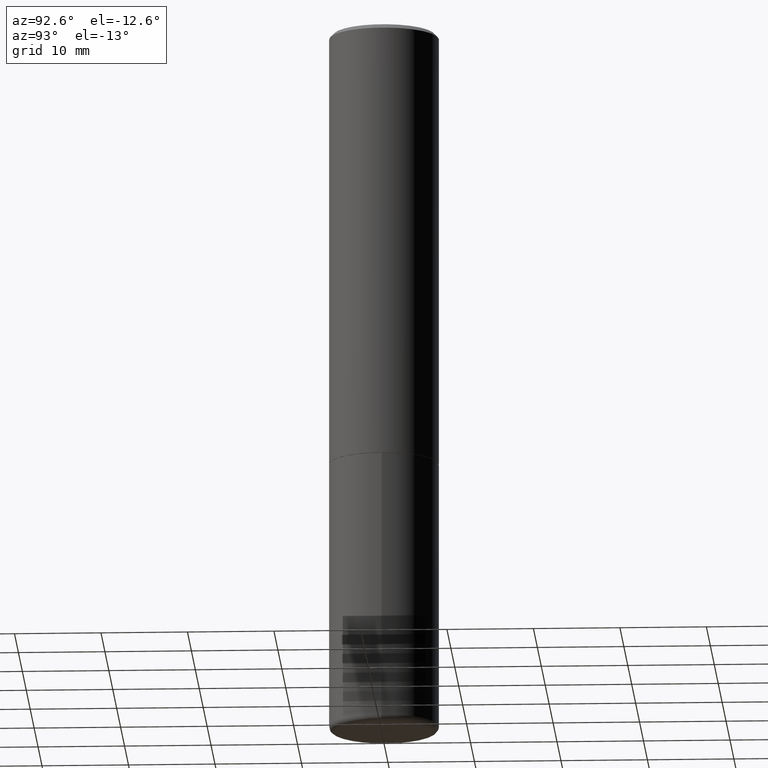
[diagram: clean part render]
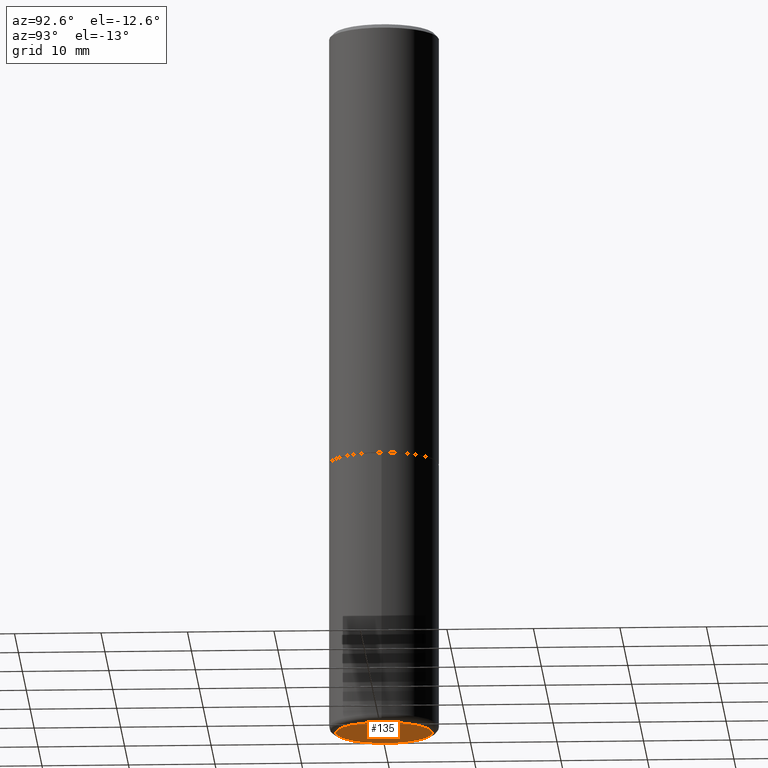
[diagram: same view with one face highlighted and labeled with its STEP entity id]
A machine part, auxiliary view. The second image highlights one B-rep face of the part: STEP entity #135.
In plain terms, the highlighted planar face has unit normal (0, -0, -1).
Its self-contained STEP definition (entity closure, byte-faithful):
#12 = CIRCLE ( 'NONE', #67, 0.2199999999999999734 ) ;
#67 = AXIS2_PLACEMENT_3D ( 'NONE', #210, #334, #343 ) ;
#86 = CARTESIAN_POINT ( 'NONE',  ( 1.358398051899499020E-28, -3.275945279050367640E-15, -3.249999999999999556 ) ) ;
#91 = DIRECTION ( 'NONE',  ( 1.000000000000000000, -6.982962677686263555E-15, 0.000000000000000000 ) ) ;
#115 = VERTEX_POINT ( 'NONE', #308 ) ;
#120 = CARTESIAN_POINT ( 'NONE',  ( -0.2199999999999999734, -9.625166702121343187E-15, -3.249999999999999556 ) ) ;
#135 = ADVANCED_FACE ( 'NONE', ( #277 ), #275, .T. ) ;
#143 = EDGE_CURVE ( 'NONE', #280, #115, #12, .T. ) ;
#210 = CARTESIAN_POINT ( 'NONE',  ( 7.947773620101692818E-29, -1.134731435124022127E-14, -3.249999999999999556 ) ) ;
#216 = CARTESIAN_POINT ( 'NONE',  ( 7.947773620101692818E-29, -1.134731435124022127E-14, -3.249999999999999556 ) ) ;
#232 = EDGE_CURVE ( 'NONE', #115, #280, #342, .T. ) ;
#235 = AXIS2_PLACEMENT_3D ( 'NONE', #216, #248, #91 ) ;
#242 = DIRECTION ( 'NONE',  ( 2.438088387897960049E-29, -3.491481338843145188E-15, -1.000000000000000000 ) ) ;
#248 = DIRECTION ( 'NONE',  ( -2.445468806185136597E-29, 3.491481338843145583E-15, 1.000000000000000000 ) ) ;
#257 = ORIENTED_EDGE ( 'NONE', *, *, #143, .F. ) ;
#268 = ORIENTED_EDGE ( 'NONE', *, *, #232, .F. ) ;
#275 = PLANE ( 'NONE',  #397 ) ;
#277 = FACE_OUTER_BOUND ( 'NONE', #322, .T. ) ;
#280 = VERTEX_POINT ( 'NONE', #120 ) ;
#308 = CARTESIAN_POINT ( 'NONE',  ( 0.2199999999999999734, -1.288356614033119963E-14, -3.249999999999999556 ) ) ;
#322 = EDGE_LOOP ( 'NONE', ( #268, #257 ) ) ;
#334 = DIRECTION ( 'NONE',  ( -2.445468806185136597E-29, 3.491481338843145583E-15, 1.000000000000000000 ) ) ;
#341 = DIRECTION ( 'NONE',  ( -1.000000000000000000, 6.982962677686265922E-15, -4.876176775795935793E-29 ) ) ;
#342 = CIRCLE ( 'NONE', #235, 0.2199999999999999734 ) ;
#343 = DIRECTION ( 'NONE',  ( 1.000000000000000000, -6.982962677686263555E-15, 0.000000000000000000 ) ) ;
#397 = AXIS2_PLACEMENT_3D ( 'NONE', #86, #242, #341 ) ;